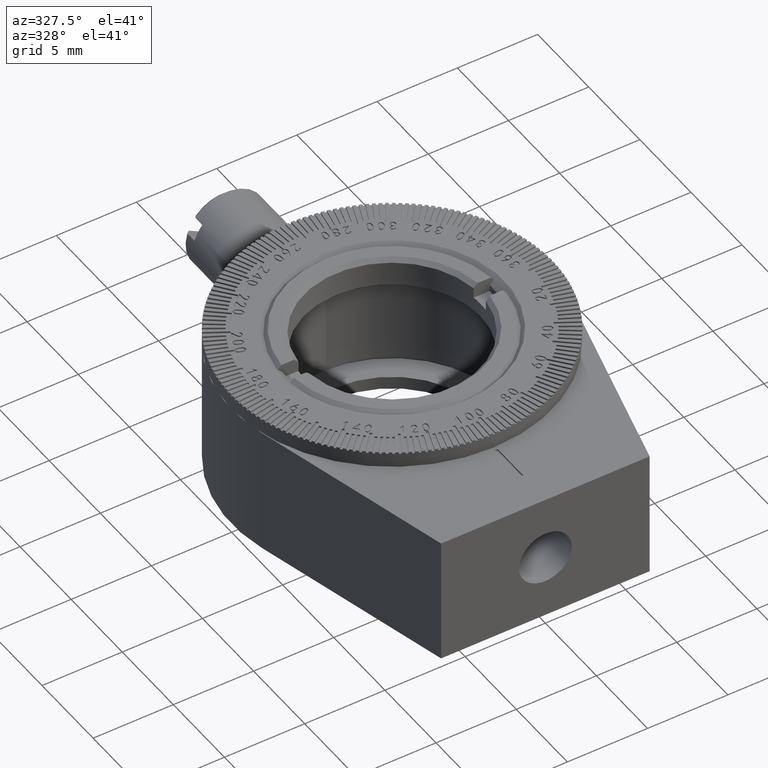
[diagram: clean part render]
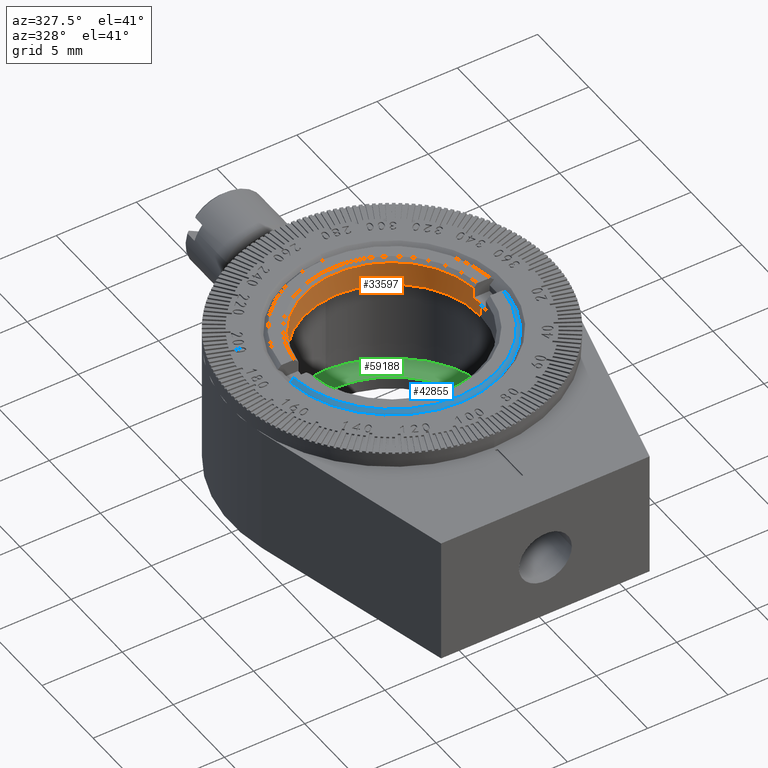
[diagram: same view with three faces highlighted in distinct colors, each labeled with its STEP entity id]
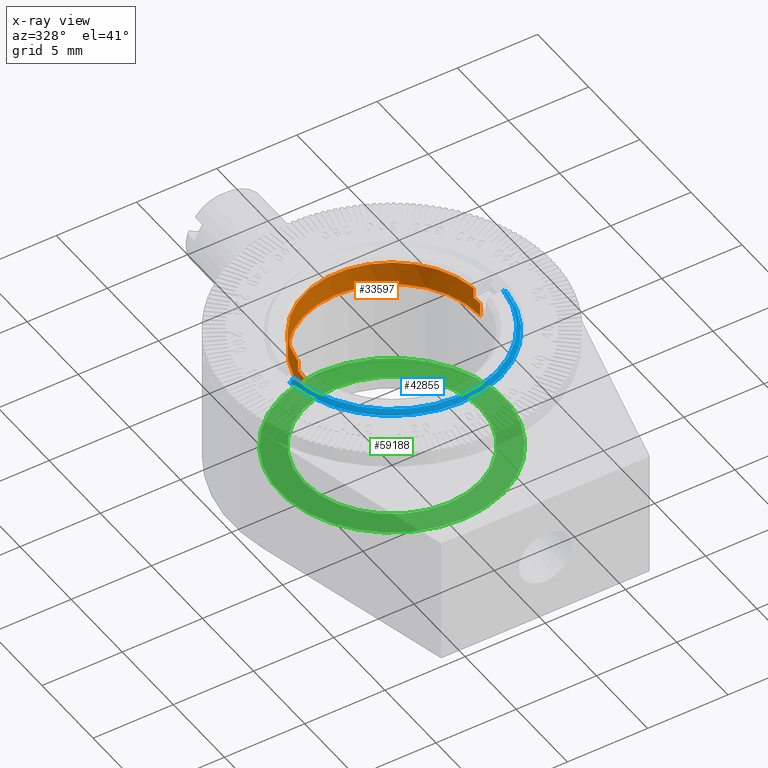
[diagram: x-ray of the same camera — body ghosted, the three highlighted faces saturated]
A machine part, auxiliary view with three faces highlighted in distinct colors.
The next image is the same camera in x-ray (body ghosted, the three faces saturated) — at least one of them is partly hidden behind the body in this view.
Their STEP definitions:

[orange] entity #33597 — the highlighted cylindrical surface (partial cylindrical patch) has radius 5.5 mm, axis along (0, 0, 1).
#3183 = CYLINDRICAL_SURFACE ( 'NONE', #25395, 5.500000000000000000 ) ;
#3249 = DIRECTION ( 'NONE',  ( 0.000000000000000000, -0.000000000000000000, -1.000000000000000000 ) ) ;
#3890 = DIRECTION ( 'NONE',  ( 0.000000000000000000, -0.000000000000000000, -1.000000000000000000 ) ) ;
#4133 = FACE_OUTER_BOUND ( 'NONE', #29594, .T. ) ;
#4431 = CARTESIAN_POINT ( 'NONE',  ( -5.467174773134660271, 0.6000000000000000888, 8.100000000000001421 ) ) ;
#7570 = CARTESIAN_POINT ( 'NONE',  ( 5.467174773134654941, 0.6000000000000000888, 8.100000000000001421 ) ) ;
#7688 = DIRECTION ( 'NONE',  ( 1.000000000000000000, 0.000000000000000000, 0.000000000000000000 ) ) ;
#7975 = EDGE_CURVE ( 'NONE', #55743, #13104, #36900, .T. ) ;
#8292 = VERTEX_POINT ( 'NONE', #4431 ) ;
#8580 = DIRECTION ( 'NONE',  ( -0.000000000000000000, -0.000000000000000000, -1.000000000000000000 ) ) ;
#8977 = CARTESIAN_POINT ( 'NONE',  ( -2.469511555465232972E-15, -2.172448977268806421E-31, 8.100000000000001421 ) ) ;
#9135 = LINE ( 'NONE', #29184, #24266 ) ;
#9573 = ORIENTED_EDGE ( 'NONE', *, *, #26505, .T. ) ;
#9868 = CIRCLE ( 'NONE', #17994, 5.500000000000000000 ) ;
#10949 = EDGE_CURVE ( 'NONE', #55743, #39231, #38943, .T. ) ;
#12804 = DIRECTION ( 'NONE',  ( 1.000000000000000000, 4.440892098500625373E-15, 0.000000000000000000 ) ) ;
#13104 = VERTEX_POINT ( 'NONE', #44044 ) ;
#13516 = LINE ( 'NONE', #32939, #33732 ) ;
#14715 = DIRECTION ( 'NONE',  ( 1.000000000000000000, 0.000000000000000000, 0.000000000000000000 ) ) ;
#14926 = EDGE_CURVE ( 'NONE', #60707, #48415, #13516, .T. ) ;
#17579 = CARTESIAN_POINT ( 'NONE',  ( -2.469511555465232972E-15, -2.172448977268806421E-31, 8.100000000000001421 ) ) ;
#17994 = AXIS2_PLACEMENT_3D ( 'NONE', #8977, #3890, #14715 ) ;
#18205 = VECTOR ( 'NONE', #8580, 1000.000000000000000 ) ;
#19530 = CARTESIAN_POINT ( 'NONE',  ( -5.500000000000002665, 6.735557395310440051E-16, 7.000000000000000888 ) ) ;
#21695 = VERTEX_POINT ( 'NONE', #22725 ) ;
#22015 = DIRECTION ( 'NONE',  ( -0.000000000000000000, -0.000000000000000000, -1.000000000000000000 ) ) ;
#22725 = CARTESIAN_POINT ( 'NONE',  ( -5.467174773134660271, 0.6000000000000000888, 8.750000000000005329 ) ) ;
#23862 = CARTESIAN_POINT ( 'NONE',  ( -5.467174773134660271, 0.6000000000000000888, 7.000000000000000888 ) ) ;
#24266 = VECTOR ( 'NONE', #34270, 1000.000000000000000 ) ;
#25395 = AXIS2_PLACEMENT_3D ( 'NONE', #52528, #62422, #47428 ) ;
#26354 = CARTESIAN_POINT ( 'NONE',  ( -5.500000000000002665, 6.735557395310440051E-16, 7.250000000000000888 ) ) ;
#26505 = EDGE_CURVE ( 'NONE', #48415, #21695, #36636, .T. ) ;
#26724 = AXIS2_PLACEMENT_3D ( 'NONE', #26796, #22015, #7688 ) ;
#26796 = CARTESIAN_POINT ( 'NONE',  ( -2.469511555465232972E-15, -2.172448977268806421E-31, 7.250000000000000888 ) ) ;
#28050 = ORIENTED_EDGE ( 'NONE', *, *, #40811, .T. ) ;
#28313 = CIRCLE ( 'NONE', #43576, 5.500000000000000000 ) ;
#28473 = DIRECTION ( 'NONE',  ( 0.000000000000000000, 0.000000000000000000, 1.000000000000000000 ) ) ;
#29184 = CARTESIAN_POINT ( 'NONE',  ( 5.499999999999997335, -2.172448977268806421E-31, 7.000000000000000888 ) ) ;
#29251 = LINE ( 'NONE', #23862, #18205 ) ;
#29594 = EDGE_LOOP ( 'NONE', ( #53283, #55902, #36027, #48910, #38926, #9573, #28050, #60373 ) ) ;
#31970 = CARTESIAN_POINT ( 'NONE',  ( 5.499999999999997335, -2.172448977268806421E-31, 8.100000000000001421 ) ) ;
#32219 = CARTESIAN_POINT ( 'NONE',  ( -2.469511555465232972E-15, -2.172448977268806421E-31, 8.750000000000005329 ) ) ;
#32939 = CARTESIAN_POINT ( 'NONE',  ( 5.467174773134654941, 0.6000000000000000888, 7.000000000000000888 ) ) ;
#33597 = ADVANCED_FACE ( 'NONE', ( #4133 ), #3183, .F. ) ;
#33732 = VECTOR ( 'NONE', #28473, 1000.000000000000000 ) ;
#34270 = DIRECTION ( 'NONE',  ( 0.000000000000000000, 0.000000000000000000, 1.000000000000000000 ) ) ;
#35023 = CARTESIAN_POINT ( 'NONE',  ( -5.500000000000002665, 6.735557395310440051E-16, 8.100000000000001421 ) ) ;
#35593 = AXIS2_PLACEMENT_3D ( 'NONE', #32219, #47492, #61536 ) ;
#36027 = ORIENTED_EDGE ( 'NONE', *, *, #61589, .T. ) ;
#36636 = CIRCLE ( 'NONE', #35593, 5.500000000000000000 ) ;
#36900 = CIRCLE ( 'NONE', #26724, 5.500000000000000000 ) ;
#38787 = VERTEX_POINT ( 'NONE', #31970 ) ;
#38926 = ORIENTED_EDGE ( 'NONE', *, *, #14926, .T. ) ;
#38943 = LINE ( 'NONE', #19530, #45454 ) ;
#39231 = VERTEX_POINT ( 'NONE', #35023 ) ;
#40811 = EDGE_CURVE ( 'NONE', #21695, #8292, #29251, .T. ) ;
#42797 = EDGE_CURVE ( 'NONE', #39231, #8292, #9868, .T. ) ;
#43576 = AXIS2_PLACEMENT_3D ( 'NONE', #17579, #3249, #12804 ) ;
#44044 = CARTESIAN_POINT ( 'NONE',  ( 5.499999999999997335, -2.172448977268806421E-31, 7.250000000000000888 ) ) ;
#45454 = VECTOR ( 'NONE', #53286, 1000.000000000000000 ) ;
#47428 = DIRECTION ( 'NONE',  ( 1.000000000000000000, 0.000000000000000000, 0.000000000000000000 ) ) ;
#47492 = DIRECTION ( 'NONE',  ( 0.000000000000000000, 0.000000000000000000, 1.000000000000000000 ) ) ;
#48415 = VERTEX_POINT ( 'NONE', #48437 ) ;
#48437 = CARTESIAN_POINT ( 'NONE',  ( 5.467174773134654941, 0.6000000000000000888, 8.750000000000005329 ) ) ;
#48910 = ORIENTED_EDGE ( 'NONE', *, *, #60395, .F. ) ;
#52528 = CARTESIAN_POINT ( 'NONE',  ( -2.469511555465232972E-15, -2.172448977268806421E-31, 7.000000000000000888 ) ) ;
#53283 = ORIENTED_EDGE ( 'NONE', *, *, #10949, .F. ) ;
#53286 = DIRECTION ( 'NONE',  ( 0.000000000000000000, 0.000000000000000000, 1.000000000000000000 ) ) ;
#55743 = VERTEX_POINT ( 'NONE', #26354 ) ;
#55902 = ORIENTED_EDGE ( 'NONE', *, *, #7975, .T. ) ;
#60373 = ORIENTED_EDGE ( 'NONE', *, *, #42797, .F. ) ;
#60395 = EDGE_CURVE ( 'NONE', #60707, #38787, #28313, .T. ) ;
#60707 = VERTEX_POINT ( 'NONE', #7570 ) ;
#61536 = DIRECTION ( 'NONE',  ( 1.000000000000000000, 0.000000000000000000, 0.000000000000000000 ) ) ;
#61589 = EDGE_CURVE ( 'NONE', #13104, #38787, #9135, .T. ) ;
#62422 = DIRECTION ( 'NONE',  ( 0.000000000000000000, 0.000000000000000000, 1.000000000000000000 ) ) ;

[blue] entity #42855 — the highlighted conical surface has half-angle 45 deg.
#940 = CARTESIAN_POINT ( 'NONE',  ( -2.469511555465232972E-15, -2.172448977268806421E-31, 8.750000000000005329 ) ) ;
#2293 = VERTEX_POINT ( 'NONE', #50884 ) ;
#3373 = AXIS2_PLACEMENT_3D ( 'NONE', #48150, #58023, #42739 ) ;
#4462 = CARTESIAN_POINT ( 'NONE',  ( 6.768458096198865626, -0.5999999999999998668, 8.750000000000005329 ) ) ;
#4478 = B_SPLINE_CURVE_WITH_KNOTS ( 'NONE', 3,
 ( #28645, #33101, #23878, #4462 ),
 .UNSPECIFIED., .F., .F.,
 ( 4, 4 ),
 ( 0.01810251681130900167, 0.01845672730272878564 ),
 .UNSPECIFIED. ) ;
#5307 = ORIENTED_EDGE ( 'NONE', *, *, #55426, .F. ) ;
#7284 = EDGE_CURVE ( 'NONE', #18565, #57218, #25874, .T. ) ;
#8200 = CARTESIAN_POINT ( 'NONE',  ( 6.517440064933472499, -0.5999999999999998668, 9.000000000000001776 ) ) ;
#10232 = DIRECTION ( 'NONE',  ( 0.000000000000000000, 0.000000000000000000, -1.000000000000000000 ) ) ;
#11439 = DIRECTION ( 'NONE',  ( 0.000000000000000000, 0.000000000000000000, -1.000000000000000000 ) ) ;
#12622 = CONICAL_SURFACE ( 'NONE', #42062, 6.545000000000005258, 0.7853981633974466137 ) ;
#13089 = ORIENTED_EDGE ( 'NONE', *, *, #17898, .F. ) ;
#17898 = EDGE_CURVE ( 'NONE', #57218, #49575, #58289, .T. ) ;
#18565 = VERTEX_POINT ( 'NONE', #23330 ) ;
#20405 = DIRECTION ( 'NONE',  ( -1.000000000000000000, 0.000000000000000000, 0.000000000000000000 ) ) ;
#23330 = CARTESIAN_POINT ( 'NONE',  ( -6.768458096198870955, -0.5999999999999998668, 8.750000000000005329 ) ) ;
#23878 = CARTESIAN_POINT ( 'NONE',  ( 6.684791664338678885, -0.5999999999999998668, 8.833339622973392480 ) ) ;
#24254 = CARTESIAN_POINT ( 'NONE',  ( -2.469511555465232972E-15, -2.172448977268806421E-31, 9.000000000000001776 ) ) ;
#25874 = B_SPLINE_CURVE_WITH_KNOTS ( 'NONE', 3,
 ( #31664, #36752, #51094, #60968 ),
 .UNSPECIFIED., .F., .F.,
 ( 4, 4 ),
 ( 9.918469259742692008E-07, 0.0003552499122487280821 ),
 .UNSPECIFIED. ) ;
#28645 = CARTESIAN_POINT ( 'NONE',  ( 6.517440064933472499, -0.5999999999999998668, 9.000000000000001776 ) ) ;
#29962 = FACE_OUTER_BOUND ( 'NONE', #62790, .T. ) ;
#30863 = DIRECTION ( 'NONE',  ( 1.000000000000000000, 0.000000000000000000, 0.000000000000000000 ) ) ;
#31664 = CARTESIAN_POINT ( 'NONE',  ( -6.768458096198870955, -0.5999999999999998668, 8.750000000000005329 ) ) ;
#33073 = ORIENTED_EDGE ( 'NONE', *, *, #46521, .F. ) ;
#33101 = CARTESIAN_POINT ( 'NONE',  ( 6.601119226786322791, -0.5999999999999998668, 8.916673197546248986 ) ) ;
#36752 = CARTESIAN_POINT ( 'NONE',  ( -6.684791614305445329, -0.5999999999999998668, 8.833339672811193921 ) ) ;
#41718 = CARTESIAN_POINT ( 'NONE',  ( -6.517440064933477828, -0.5999999999999998668, 9.000000000000001776 ) ) ;
#42062 = AXIS2_PLACEMENT_3D ( 'NONE', #24254, #10232, #20405 ) ;
#42739 = DIRECTION ( 'NONE',  ( 1.000000000000000000, 0.000000000000000000, 0.000000000000000000 ) ) ;
#42855 = ADVANCED_FACE ( 'NONE', ( #29962 ), #12622, .T. ) ;
#46521 = EDGE_CURVE ( 'NONE', #2293, #18565, #47329, .T. ) ;
#47329 = CIRCLE ( 'NONE', #58390, 6.794999999999999929 ) ;
#48150 = CARTESIAN_POINT ( 'NONE',  ( -2.469511555465232972E-15, -2.172448977268806421E-31, 9.000000000000001776 ) ) ;
#49196 = ORIENTED_EDGE ( 'NONE', *, *, #7284, .F. ) ;
#49575 = VERTEX_POINT ( 'NONE', #8200 ) ;
#50884 = CARTESIAN_POINT ( 'NONE',  ( 6.768458096198865626, -0.5999999999999998668, 8.750000000000005329 ) ) ;
#51094 = CARTESIAN_POINT ( 'NONE',  ( -6.601119174826220792, -0.5999999999999998668, 8.916673249287558889 ) ) ;
#55426 = EDGE_CURVE ( 'NONE', #49575, #2293, #4478, .T. ) ;
#57218 = VERTEX_POINT ( 'NONE', #41718 ) ;
#58023 = DIRECTION ( 'NONE',  ( 0.000000000000000000, 0.000000000000000000, 1.000000000000000000 ) ) ;
#58289 = CIRCLE ( 'NONE', #3373, 6.545000000000005258 ) ;
#58390 = AXIS2_PLACEMENT_3D ( 'NONE', #940, #11439, #30863 ) ;
#60968 = CARTESIAN_POINT ( 'NONE',  ( -6.517440064933477828, -0.5999999999999998668, 9.000000000000001776 ) ) ;
#62790 = EDGE_LOOP ( 'NONE', ( #49196, #33073, #5307, #13089 ) ) ;

[green] entity #59188 — the highlighted planar face has unit normal (0, -0, -1).
#503 = CARTESIAN_POINT ( 'NONE',  ( 3.555750696339758879E-15, 5.328245378883475908E-30, 0.8000000000000020428 ) ) ;
#670 = DIRECTION ( 'NONE',  ( -7.347880794884131569E-16, -7.667831074058618192E-31, 1.000000000000000000 ) ) ;
#1094 = PLANE ( 'NONE',  #20606 ) ;
#1351 = CARTESIAN_POINT ( 'NONE',  ( -5.603589256817822811E-15, -5.500000000000027534, 0.8000000000000020428 ) ) ;
#3224 = AXIS2_PLACEMENT_3D ( 'NONE', #40058, #26051, #55348 ) ;
#6162 = EDGE_CURVE ( 'NONE', #21790, #43288, #30694, .T. ) ;
#6506 = CIRCLE ( 'NONE', #16691, 5.500000000000027534 ) ;
#6513 = DIRECTION ( 'NONE',  ( 7.347880794884131569E-16, -7.849457739311558122E-31, -1.000000000000000000 ) ) ;
#9543 = AXIS2_PLACEMENT_3D ( 'NONE', #34819, #44663, #10625 ) ;
#10522 = CIRCLE ( 'NONE', #9543, 7.000000000000035527 ) ;
#10625 = DIRECTION ( 'NONE',  ( -1.665334536937733627E-15, -1.000000000000000000, 0.000000000000000000 ) ) ;
#12218 = CARTESIAN_POINT ( 'NONE',  ( -7.428035322693335170E-15, -7.000000000000000000, 0.8000000000000020428 ) ) ;
#15130 = DIRECTION ( 'NONE',  ( 1.665334536937733825E-15, 1.000000000000000000, 4.387221921710473913E-31 ) ) ;
#15243 = AXIS2_PLACEMENT_3D ( 'NONE', #22243, #27032, #61100 ) ;
#16691 = AXIS2_PLACEMENT_3D ( 'NONE', #61063, #670, #21264 ) ;
#20606 = AXIS2_PLACEMENT_3D ( 'NONE', #503, #6513, #15130 ) ;
#21264 = DIRECTION ( 'NONE',  ( -1.665334536937734022E-15, -1.000000000000000000, 0.000000000000000000 ) ) ;
#21790 = VERTEX_POINT ( 'NONE', #12218 ) ;
#22243 = CARTESIAN_POINT ( 'NONE',  ( 3.555750696339758879E-15, 5.328245378883475908E-30, 0.8000000000000020428 ) ) ;
#25616 = EDGE_LOOP ( 'NONE', ( #50585, #26325 ) ) ;
#26051 = DIRECTION ( 'NONE',  ( -7.347880794884131569E-16, -7.667831074058618192E-31, 1.000000000000000000 ) ) ;
#26083 = CARTESIAN_POINT ( 'NONE',  ( 1.368256162082371211E-14, 5.500000000000000000, 0.8000000000000020428 ) ) ;
#26325 = ORIENTED_EDGE ( 'NONE', *, *, #6162, .T. ) ;
#27032 = DIRECTION ( 'NONE',  ( -7.347880794884131569E-16, -7.667831074058618192E-31, 1.000000000000000000 ) ) ;
#30694 = CIRCLE ( 'NONE', #3224, 7.000000000000035527 ) ;
#30930 = EDGE_CURVE ( 'NONE', #46536, #32530, #45731, .T. ) ;
#32530 = VERTEX_POINT ( 'NONE', #1351 ) ;
#34819 = CARTESIAN_POINT ( 'NONE',  ( 3.555750696339758879E-15, 5.328245378883475908E-30, 0.8000000000000020428 ) ) ;
#40058 = CARTESIAN_POINT ( 'NONE',  ( 3.555750696339758879E-15, 5.328245378883475908E-30, 0.8000000000000020428 ) ) ;
#40155 = ORIENTED_EDGE ( 'NONE', *, *, #43978, .F. ) ;
#43288 = VERTEX_POINT ( 'NONE', #43457 ) ;
#43306 = ORIENTED_EDGE ( 'NONE', *, *, #30930, .F. ) ;
#43457 = CARTESIAN_POINT ( 'NONE',  ( 1.502939543503179352E-14, 7.000000000000000000, 0.8000000000000020428 ) ) ;
#43978 = EDGE_CURVE ( 'NONE', #32530, #46536, #6506, .T. ) ;
#44663 = DIRECTION ( 'NONE',  ( -7.347880794884131569E-16, -7.667831074058618192E-31, 1.000000000000000000 ) ) ;
#45731 = CIRCLE ( 'NONE', #15243, 5.500000000000027534 ) ;
#46536 = VERTEX_POINT ( 'NONE', #26083 ) ;
#49796 = FACE_OUTER_BOUND ( 'NONE', #25616, .T. ) ;
#50585 = ORIENTED_EDGE ( 'NONE', *, *, #55984, .T. ) ;
#54893 = FACE_BOUND ( 'NONE', #60850, .T. ) ;
#55348 = DIRECTION ( 'NONE',  ( -1.665334536937733627E-15, -1.000000000000000000, 0.000000000000000000 ) ) ;
#55984 = EDGE_CURVE ( 'NONE', #43288, #21790, #10522, .T. ) ;
#59188 = ADVANCED_FACE ( 'NONE', ( #54893, #49796 ), #1094, .F. ) ;
#60850 = EDGE_LOOP ( 'NONE', ( #40155, #43306 ) ) ;
#61063 = CARTESIAN_POINT ( 'NONE',  ( 3.555750696339758879E-15, 5.328245378883475908E-30, 0.8000000000000020428 ) ) ;
#61100 = DIRECTION ( 'NONE',  ( -1.665334536937734022E-15, -1.000000000000000000, 0.000000000000000000 ) ) ;